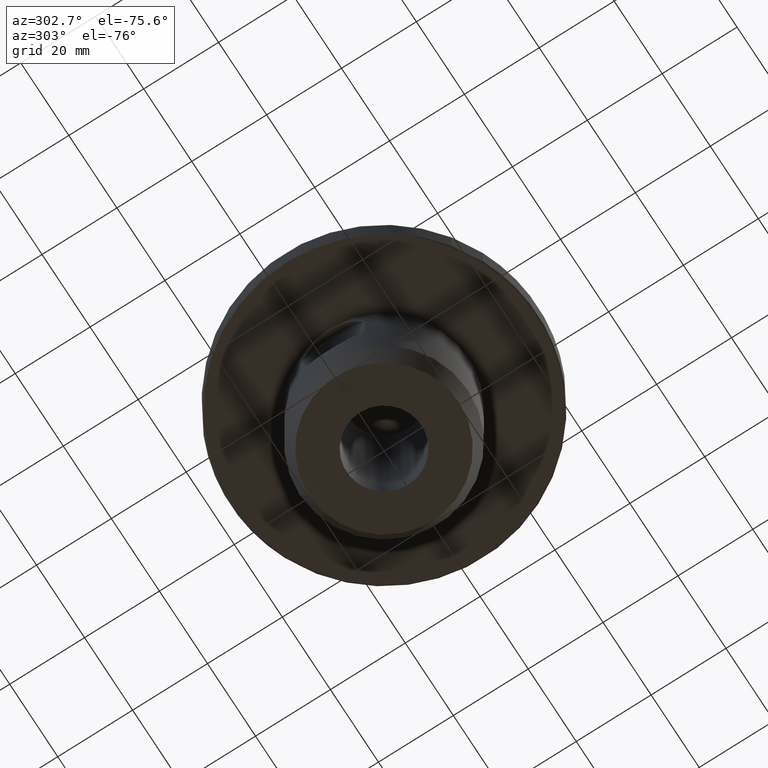
[diagram: clean part render]
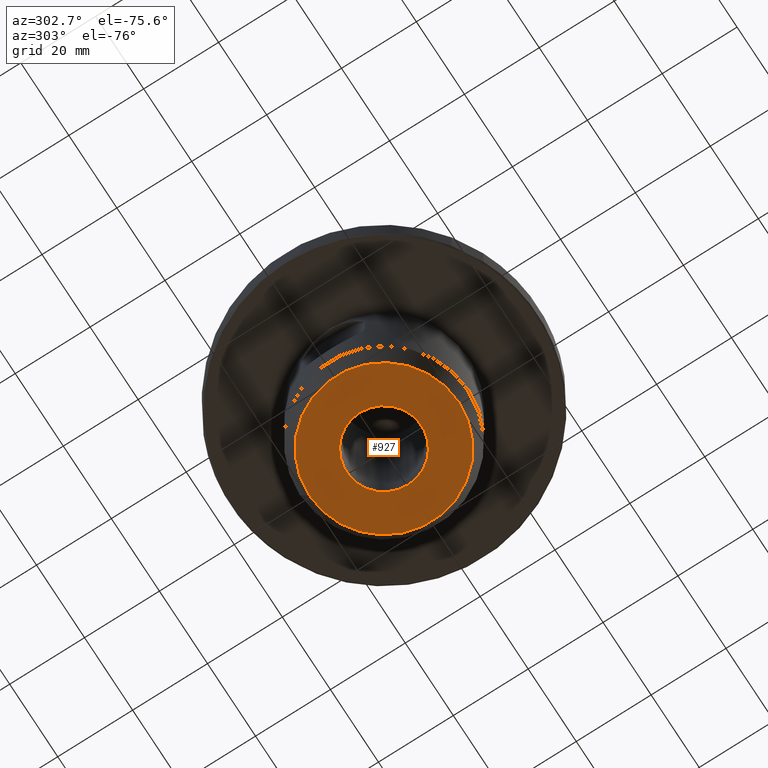
[diagram: same view with one face highlighted and labeled with its STEP entity id]
A machine part, auxiliary view. The second image highlights one B-rep face of the part: STEP entity #927.
In plain terms, the highlighted planar face has unit normal (0, 0, -1).
Its self-contained STEP definition (entity closure, byte-faithful):
#39=PLANE('',#1010);
#60=CIRCLE('',#1011,10.);
#61=CIRCLE('',#1012,20.);
#183=ORIENTED_EDGE('',*,*,#445,.T.);
#184=ORIENTED_EDGE('',*,*,#446,.T.);
#445=EDGE_CURVE('',#576,#576,#60,.T.);
#446=EDGE_CURVE('',#577,#577,#61,.T.);
#576=VERTEX_POINT('',#1461);
#577=VERTEX_POINT('',#1463);
#710=EDGE_LOOP('',(#183));
#711=EDGE_LOOP('',(#184));
#805=FACE_BOUND('',#710,.T.);
#806=FACE_BOUND('',#711,.T.);
#927=ADVANCED_FACE('',(#805,#806),#39,.T.);
#1010=AXIS2_PLACEMENT_3D('',#1459,#1142,#1143);
#1011=AXIS2_PLACEMENT_3D('',#1460,#1144,#1145);
#1012=AXIS2_PLACEMENT_3D('',#1462,#1146,#1147);
#1142=DIRECTION('',(0.,0.,-1.));
#1143=DIRECTION('',(0.,1.,0.));
#1144=DIRECTION('',(0.,0.,1.));
#1145=DIRECTION('',(-1.,0.,0.));
#1146=DIRECTION('',(0.,0.,-1.));
#1147=DIRECTION('',(0.,1.,0.));
#1459=CARTESIAN_POINT('',(0.,20.,-44.));
#1460=CARTESIAN_POINT('',(0.,0.,-44.));
#1461=CARTESIAN_POINT('',(-10.,0.,-44.));
#1462=CARTESIAN_POINT('',(0.,0.,-44.));
#1463=CARTESIAN_POINT('',(0.,20.,-44.));